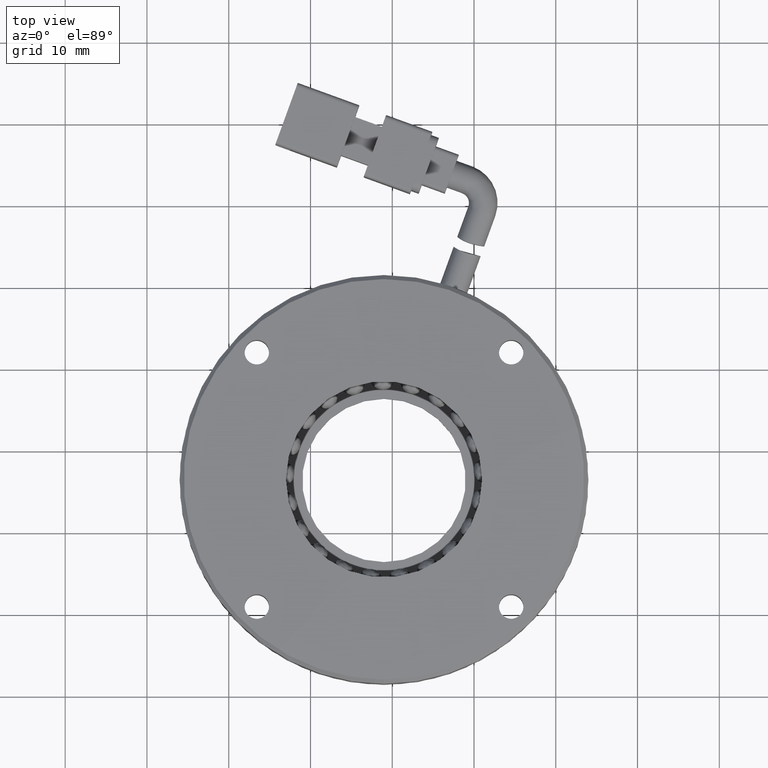
[diagram: clean part render]
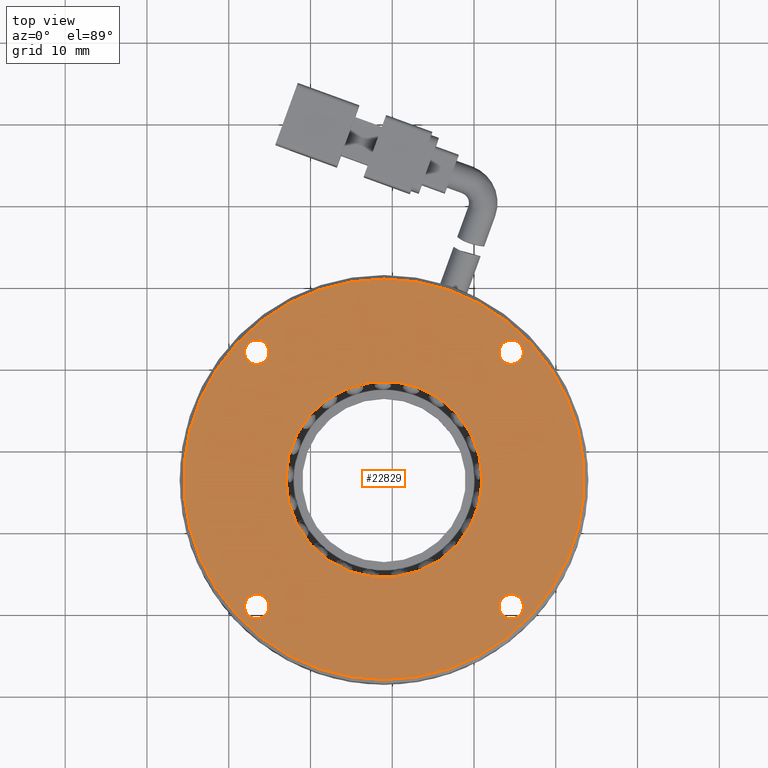
[diagram: same view with one face highlighted and labeled with its STEP entity id]
A machine part, top view. The second image highlights one B-rep face of the part: STEP entity #22829.
In plain terms, the highlighted planar face has unit normal (0, 0, -1).
Its self-contained STEP definition (entity closure, byte-faithful):
#397 = AXIS2_PLACEMENT_3D ( 'NONE', #8221, #22167, #10236 ) ;
#523 = DIRECTION ( 'NONE',  ( -1.000000000000000000, 0.0000000000000000000, 0.0000000000000000000 ) ) ;
#838 = AXIS2_PLACEMENT_3D ( 'NONE', #4997, #18883, #6984 ) ;
#1157 = CARTESIAN_POINT ( 'NONE',  ( -133.0083944312393100, 6.460725025466879300, 3.500000000000063100 ) ) ;
#1370 = ORIENTED_EDGE ( 'NONE', *, *, #13037, .F. ) ;
#1382 = VERTEX_POINT ( 'NONE', #15886 ) ;
#1929 = CARTESIAN_POINT ( 'NONE',  ( -138.0647436173434800, -9.095624160637029800, 3.500000000000063100 ) ) ;
#2371 = AXIS2_PLACEMENT_3D ( 'NONE', #21523, #9580, #23505 ) ;
#3369 = FACE_BOUND ( 'NONE', #8557, .T. ) ;
#3442 = EDGE_CURVE ( 'NONE', #10515, #22020, #11003, .T. ) ;
#3565 = VERTEX_POINT ( 'NONE', #7487 ) ;
#3850 = CARTESIAN_POINT ( 'NONE',  ( -121.0083944312392800, 30.96072502546687100, 3.500000000000063100 ) ) ;
#3893 = ORIENTED_EDGE ( 'NONE', *, *, #13230, .F. ) ;
#4299 = CIRCLE ( 'NONE', #23037, 24.49999999999999300 ) ;
#4580 = EDGE_CURVE ( 'NONE', #25484, #10093, #10350, .T. ) ;
#4997 = CARTESIAN_POINT ( 'NONE',  ( -109.0083944312392800, 6.460725025466879300, 3.500000000000062200 ) ) ;
#5189 = CARTESIAN_POINT ( 'NONE',  ( -136.5647436173431400, 22.01707421157111700, 3.500000000000063100 ) ) ;
#5538 = EDGE_CURVE ( 'NONE', #3565, #14935, #24161, .T. ) ;
#5936 = DIRECTION ( 'NONE',  ( 0.0000000000000000000, -8.673617379884035500E-018, -1.000000000000000000 ) ) ;
#6349 = EDGE_CURVE ( 'NONE', #25215, #21976, #8812, .T. ) ;
#6897 = AXIS2_PLACEMENT_3D ( 'NONE', #8963, #22911, #10965 ) ;
#6984 = DIRECTION ( 'NONE',  ( -1.000000000000000000, 0.0000000000000000000, -0.0000000000000000000 ) ) ;
#7020 = CIRCLE ( 'NONE', #397, 1.499999999999987600 ) ;
#7179 = DIRECTION ( 'NONE',  ( -1.000000000000000000, 0.0000000000000000000, 0.0000000000000000000 ) ) ;
#7325 = VERTEX_POINT ( 'NONE', #22186 ) ;
#7414 = CARTESIAN_POINT ( 'NONE',  ( -135.0647436173434800, -9.095624160637029800, 3.500000000000063100 ) ) ;
#7487 = CARTESIAN_POINT ( 'NONE',  ( -138.0647436173431400, 22.01707421157111700, 3.500000000000063100 ) ) ;
#7756 = CIRCLE ( 'NONE', #24494, 1.499999999999987600 ) ;
#7903 = ORIENTED_EDGE ( 'NONE', *, *, #24848, .F. ) ;
#8221 = CARTESIAN_POINT ( 'NONE',  ( -105.4520452451353200, -9.095624160637248300, 3.500000000000063100 ) ) ;
#8237 = DIRECTION ( 'NONE',  ( 0.0000000000000000000, 0.0000000000000000000, 1.000000000000000000 ) ) ;
#8327 = EDGE_LOOP ( 'NONE', ( #17353, #14212 ) ) ;
#8557 = EDGE_LOOP ( 'NONE', ( #22348, #24350 ) ) ;
#8645 = DIRECTION ( 'NONE',  ( 0.0000000000000000000, 0.0000000000000000000, 1.000000000000000000 ) ) ;
#8674 = FACE_BOUND ( 'NONE', #16117, .T. ) ;
#8812 = CIRCLE ( 'NONE', #24765, 12.00000000000001100 ) ;
#8963 = CARTESIAN_POINT ( 'NONE',  ( -121.0083944312392800, 6.460725025466879300, 3.500000000000063100 ) ) ;
#9040 = AXIS2_PLACEMENT_3D ( 'NONE', #5189, #19077, #7179 ) ;
#9520 = EDGE_CURVE ( 'NONE', #16742, #20750, #7756, .T. ) ;
#9580 = DIRECTION ( 'NONE',  ( 0.0000000000000000000, 0.0000000000000000000, 1.000000000000000000 ) ) ;
#10093 = VERTEX_POINT ( 'NONE', #7414 ) ;
#10236 = DIRECTION ( 'NONE',  ( -1.000000000000000000, 0.0000000000000000000, 0.0000000000000000000 ) ) ;
#10350 = CIRCLE ( 'NONE', #22551, 1.500000000000001300 ) ;
#10515 = VERTEX_POINT ( 'NONE', #23048 ) ;
#10641 = DIRECTION ( 'NONE',  ( 0.0000000000000000000, 0.0000000000000000000, 1.000000000000000000 ) ) ;
#10892 = PLANE ( 'NONE',  #838 ) ;
#10965 = DIRECTION ( 'NONE',  ( -1.000000000000000000, 0.0000000000000000000, 0.0000000000000000000 ) ) ;
#11003 = CIRCLE ( 'NONE', #14458, 24.49999999999999300 ) ;
#11061 = CARTESIAN_POINT ( 'NONE',  ( -105.4520452451352100, 22.01707421157089700, 3.500000000000063100 ) ) ;
#11241 = EDGE_LOOP ( 'NONE', ( #25026, #7903 ) ) ;
#11243 = DIRECTION ( 'NONE',  ( 0.0000000000000000000, 0.0000000000000000000, 1.000000000000000000 ) ) ;
#11349 = ORIENTED_EDGE ( 'NONE', *, *, #19300, .F. ) ;
#12039 = ORIENTED_EDGE ( 'NONE', *, *, #5538, .F. ) ;
#12376 = AXIS2_PLACEMENT_3D ( 'NONE', #11061, #24994, #13071 ) ;
#12447 = DIRECTION ( 'NONE',  ( 0.0000000000000000000, 0.0000000000000000000, 1.000000000000000000 ) ) ;
#13037 = EDGE_CURVE ( 'NONE', #21976, #25215, #18043, .T. ) ;
#13071 = DIRECTION ( 'NONE',  ( -1.000000000000000000, 0.0000000000000000000, 0.0000000000000000000 ) ) ;
#13230 = EDGE_CURVE ( 'NONE', #1382, #7325, #17090, .T. ) ;
#13328 = FACE_OUTER_BOUND ( 'NONE', #8327, .T. ) ;
#13575 = DIRECTION ( 'NONE',  ( 0.0000000000000000000, 1.000000000000000000, 0.0000000000000000000 ) ) ;
#13656 = DIRECTION ( 'NONE',  ( 0.0000000000000000000, -8.673617379884035500E-018, -1.000000000000000000 ) ) ;
#13734 = CARTESIAN_POINT ( 'NONE',  ( -121.0083944312392800, 6.460725025466879300, 3.500000000000063100 ) ) ;
#13781 = AXIS2_PLACEMENT_3D ( 'NONE', #22595, #10641, #24578 ) ;
#13955 = FACE_BOUND ( 'NONE', #11241, .T. ) ;
#14212 = ORIENTED_EDGE ( 'NONE', *, *, #3442, .F. ) ;
#14458 = AXIS2_PLACEMENT_3D ( 'NONE', #13734, #13656, #13575 ) ;
#14935 = VERTEX_POINT ( 'NONE', #18833 ) ;
#14995 = ORIENTED_EDGE ( 'NONE', *, *, #17333, .F. ) ;
#15257 = ORIENTED_EDGE ( 'NONE', *, *, #6349, .F. ) ;
#15655 = CIRCLE ( 'NONE', #12376, 1.499999999999987600 ) ;
#15861 = CIRCLE ( 'NONE', #13781, 1.500000000000001300 ) ;
#15886 = CARTESIAN_POINT ( 'NONE',  ( -106.9520452451352000, 22.01707421157089700, 3.500000000000063100 ) ) ;
#16117 = EDGE_LOOP ( 'NONE', ( #15257, #1370 ) ) ;
#16742 = VERTEX_POINT ( 'NONE', #16933 ) ;
#16933 = CARTESIAN_POINT ( 'NONE',  ( -103.9520452451353400, -9.095624160637248300, 3.500000000000063100 ) ) ;
#17090 = CIRCLE ( 'NONE', #2371, 1.499999999999987600 ) ;
#17333 = EDGE_CURVE ( 'NONE', #7325, #1382, #15655, .T. ) ;
#17353 = ORIENTED_EDGE ( 'NONE', *, *, #23116, .F. ) ;
#17817 = CARTESIAN_POINT ( 'NONE',  ( -121.0083944312392800, 6.460725025466879300, 3.500000000000063100 ) ) ;
#18041 = CARTESIAN_POINT ( 'NONE',  ( -106.9520452451353100, -9.095624160637248300, 3.500000000000063100 ) ) ;
#18043 = CIRCLE ( 'NONE', #6897, 12.00000000000001100 ) ;
#18635 = FACE_BOUND ( 'NONE', #25120, .T. ) ;
#18833 = CARTESIAN_POINT ( 'NONE',  ( -135.0647436173431400, 22.01707421157111700, 3.500000000000063100 ) ) ;
#18883 = DIRECTION ( 'NONE',  ( 0.0000000000000000000, 0.0000000000000000000, -1.000000000000000000 ) ) ;
#19077 = DIRECTION ( 'NONE',  ( 0.0000000000000000000, 0.0000000000000000000, 1.000000000000000000 ) ) ;
#19252 = FACE_BOUND ( 'NONE', #19948, .T. ) ;
#19300 = EDGE_CURVE ( 'NONE', #14935, #3565, #15861, .T. ) ;
#19855 = DIRECTION ( 'NONE',  ( 0.0000000000000000000, 1.000000000000000000, 0.0000000000000000000 ) ) ;
#19948 = EDGE_LOOP ( 'NONE', ( #3893, #14995 ) ) ;
#20165 = CARTESIAN_POINT ( 'NONE',  ( -136.5647436173434800, -9.095624160637029800, 3.500000000000063100 ) ) ;
#20573 = CARTESIAN_POINT ( 'NONE',  ( -121.0083944312392800, 6.460725025466879300, 3.500000000000063100 ) ) ;
#20729 = EDGE_CURVE ( 'NONE', #20750, #16742, #7020, .T. ) ;
#20750 = VERTEX_POINT ( 'NONE', #18041 ) ;
#20796 = AXIS2_PLACEMENT_3D ( 'NONE', #23186, #11243, #25194 ) ;
#21523 = CARTESIAN_POINT ( 'NONE',  ( -105.4520452451352100, 22.01707421157089700, 3.500000000000063100 ) ) ;
#21623 = CARTESIAN_POINT ( 'NONE',  ( -109.0083944312392800, 6.460725025466881100, 3.500000000000063100 ) ) ;
#21976 = VERTEX_POINT ( 'NONE', #21623 ) ;
#22020 = VERTEX_POINT ( 'NONE', #3850 ) ;
#22167 = DIRECTION ( 'NONE',  ( 0.0000000000000000000, 0.0000000000000000000, 1.000000000000000000 ) ) ;
#22182 = DIRECTION ( 'NONE',  ( -1.000000000000000000, 0.0000000000000000000, 0.0000000000000000000 ) ) ;
#22186 = CARTESIAN_POINT ( 'NONE',  ( -103.9520452451352200, 22.01707421157089700, 3.500000000000063100 ) ) ;
#22348 = ORIENTED_EDGE ( 'NONE', *, *, #20729, .F. ) ;
#22551 = AXIS2_PLACEMENT_3D ( 'NONE', #20165, #8237, #22182 ) ;
#22595 = CARTESIAN_POINT ( 'NONE',  ( -136.5647436173431400, 22.01707421157111700, 3.500000000000063100 ) ) ;
#22598 = DIRECTION ( 'NONE',  ( -1.000000000000000000, 0.0000000000000000000, 0.0000000000000000000 ) ) ;
#22829 = ADVANCED_FACE ( 'NONE', ( #8674, #19252, #3369, #13955, #18635, #13328 ), #10892, .F. ) ;
#22911 = DIRECTION ( 'NONE',  ( 0.0000000000000000000, 0.0000000000000000000, 1.000000000000000000 ) ) ;
#23037 = AXIS2_PLACEMENT_3D ( 'NONE', #17817, #5936, #19855 ) ;
#23048 = CARTESIAN_POINT ( 'NONE',  ( -121.0083944312392800, -18.03927497453311400, 3.500000000000063100 ) ) ;
#23116 = EDGE_CURVE ( 'NONE', #22020, #10515, #4299, .T. ) ;
#23186 = CARTESIAN_POINT ( 'NONE',  ( -136.5647436173434800, -9.095624160637029800, 3.500000000000063100 ) ) ;
#23505 = DIRECTION ( 'NONE',  ( -1.000000000000000000, 0.0000000000000000000, 0.0000000000000000000 ) ) ;
#24161 = CIRCLE ( 'NONE', #9040, 1.500000000000001300 ) ;
#24350 = ORIENTED_EDGE ( 'NONE', *, *, #9520, .F. ) ;
#24380 = CARTESIAN_POINT ( 'NONE',  ( -105.4520452451353200, -9.095624160637248300, 3.500000000000063100 ) ) ;
#24480 = CIRCLE ( 'NONE', #20796, 1.500000000000001300 ) ;
#24494 = AXIS2_PLACEMENT_3D ( 'NONE', #24380, #12447, #523 ) ;
#24578 = DIRECTION ( 'NONE',  ( -1.000000000000000000, 0.0000000000000000000, 0.0000000000000000000 ) ) ;
#24765 = AXIS2_PLACEMENT_3D ( 'NONE', #20573, #8645, #22598 ) ;
#24848 = EDGE_CURVE ( 'NONE', #10093, #25484, #24480, .T. ) ;
#24994 = DIRECTION ( 'NONE',  ( 0.0000000000000000000, 0.0000000000000000000, 1.000000000000000000 ) ) ;
#25026 = ORIENTED_EDGE ( 'NONE', *, *, #4580, .F. ) ;
#25120 = EDGE_LOOP ( 'NONE', ( #12039, #11349 ) ) ;
#25194 = DIRECTION ( 'NONE',  ( -1.000000000000000000, 0.0000000000000000000, 0.0000000000000000000 ) ) ;
#25215 = VERTEX_POINT ( 'NONE', #1157 ) ;
#25484 = VERTEX_POINT ( 'NONE', #1929 ) ;